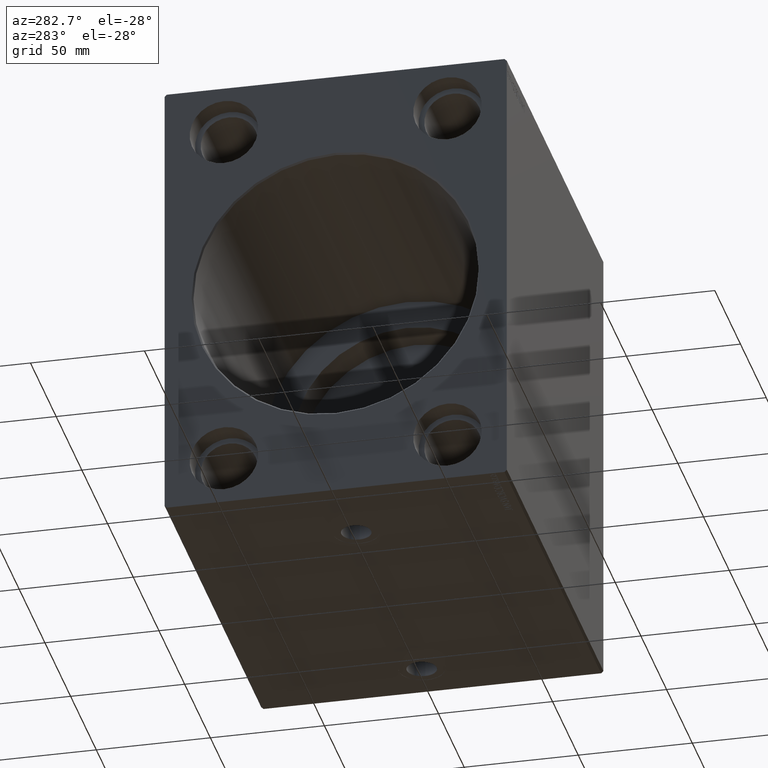
[diagram: clean part render]
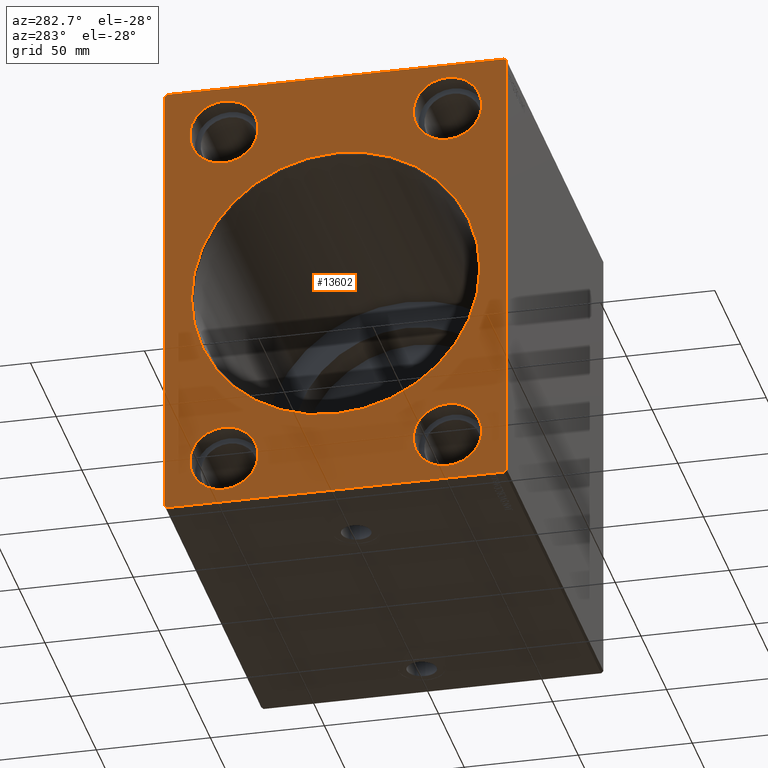
[diagram: same view with one face highlighted and labeled with its STEP entity id]
A machine part, auxiliary view. The second image highlights one B-rep face of the part: STEP entity #13602.
In plain terms, the highlighted planar face has unit normal (1, 0, 0).
Its self-contained STEP definition (entity closure, byte-faithful):
#226 = DIRECTION ( 'NONE',  ( 1.000000000000000000, -0.000000000000000000, -0.000000000000000000 ) ) ;
#692 = ORIENTED_EDGE ( 'NONE', *, *, #14228, .F. ) ;
#862 = EDGE_CURVE ( 'NONE', #36044, #10376, #34444, .T. ) ;
#997 = VECTOR ( 'NONE', #38292, 1000.000000000000114 ) ;
#1243 = VERTEX_POINT ( 'NONE', #38688 ) ;
#1377 = CARTESIAN_POINT ( 'NONE',  ( 0.000000000000000000, 49.00000000000000711, -79.00000000000001421 ) ) ;
#1546 = VERTEX_POINT ( 'NONE', #42013 ) ;
#1844 = FACE_BOUND ( 'NONE', #17213, .T. ) ;
#1917 = EDGE_CURVE ( 'NONE', #30328, #12692, #35491, .T. ) ;
#3146 = ORIENTED_EDGE ( 'NONE', *, *, #14663, .F. ) ;
#3301 = CARTESIAN_POINT ( 'NONE',  ( 0.000000000000000000, 49.00000000000000711, 79.00000000000001421 ) ) ;
#3316 = LINE ( 'NONE', #19779, #36093 ) ;
#3415 = CIRCLE ( 'NONE', #15036, 15.00000000000000000 ) ;
#4096 = DIRECTION ( 'NONE',  ( 0.000000000000000000, -0.7071067811865474617, 0.7071067811865474617 ) ) ;
#4333 = ORIENTED_EDGE ( 'NONE', *, *, #9478, .F. ) ;
#4596 = EDGE_LOOP ( 'NONE', ( #40644, #28631 ) ) ;
#4621 = FACE_OUTER_BOUND ( 'NONE', #35532, .T. ) ;
#4703 = DIRECTION ( 'NONE',  ( 0.000000000000000000, 1.000000000000000000, 0.000000000000000000 ) ) ;
#4817 = ORIENTED_EDGE ( 'NONE', *, *, #40510, .F. ) ;
#4852 = DIRECTION ( 'NONE',  ( 0.000000000000000000, 0.000000000000000000, -1.000000000000000000 ) ) ;
#4938 = CARTESIAN_POINT ( 'NONE',  ( 0.000000000000000000, 75.00000000000001421, -99.00000000000004263 ) ) ;
#4961 = ORIENTED_EDGE ( 'NONE', *, *, #35190, .F. ) ;
#5545 = ORIENTED_EDGE ( 'NONE', *, *, #1917, .F. ) ;
#5565 = AXIS2_PLACEMENT_3D ( 'NONE', #30102, #7834, #30307 ) ;
#5938 = DIRECTION ( 'NONE',  ( 0.000000000000000000, 0.7071067811865474617, -0.7071067811865474617 ) ) ;
#6638 = VERTEX_POINT ( 'NONE', #36559 ) ;
#6866 = CARTESIAN_POINT ( 'NONE',  ( 0.000000000000000000, 49.00000000000000711, 64.00000000000001421 ) ) ;
#7070 = CARTESIAN_POINT ( 'NONE',  ( 0.000000000000000000, -74.00000000000000000, 99.99999999999994316 ) ) ;
#7149 = DIRECTION ( 'NONE',  ( 0.000000000000000000, 0.000000000000000000, -1.000000000000000000 ) ) ;
#7283 = AXIS2_PLACEMENT_3D ( 'NONE', #30301, #11461, #37564 ) ;
#7297 = CARTESIAN_POINT ( 'NONE',  ( 0.000000000000000000, 75.00000000000000000, 98.99999999999995737 ) ) ;
#7514 = VECTOR ( 'NONE', #26059, 1000.000000000000000 ) ;
#7834 = DIRECTION ( 'NONE',  ( 1.000000000000000000, 0.000000000000000000, 0.000000000000000000 ) ) ;
#7861 = VECTOR ( 'NONE', #40593, 1000.000000000000000 ) ;
#8255 = PLANE ( 'NONE',  #7283 ) ;
#8652 = CARTESIAN_POINT ( 'NONE',  ( 0.000000000000000000, 49.00000000000000711, -94.00000000000001421 ) ) ;
#8901 = CARTESIAN_POINT ( 'NONE',  ( 0.000000000000000000, 0.000000000000000000, 0.000000000000000000 ) ) ;
#8966 = VERTEX_POINT ( 'NONE', #8652 ) ;
#9478 = EDGE_CURVE ( 'NONE', #39413, #30328, #20688, .T. ) ;
#9643 = DIRECTION ( 'NONE',  ( 0.000000000000000000, 0.000000000000000000, -1.000000000000000000 ) ) ;
#9655 = ORIENTED_EDGE ( 'NONE', *, *, #32042, .F. ) ;
#9807 = CARTESIAN_POINT ( 'NONE',  ( 0.000000000000000000, -75.00000000000000000, 98.99999999999994316 ) ) ;
#9911 = ORIENTED_EDGE ( 'NONE', *, *, #31232, .T. ) ;
#10376 = VERTEX_POINT ( 'NONE', #6866 ) ;
#10483 = CARTESIAN_POINT ( 'NONE',  ( 0.000000000000000000, 75.00000000000001421, -99.00000000000004263 ) ) ;
#10704 = CARTESIAN_POINT ( 'NONE',  ( 0.000000000000000000, -73.99999999999998579, -100.0000000000000426 ) ) ;
#10797 = CARTESIAN_POINT ( 'NONE',  ( 0.000000000000000000, -74.99999999999997158, -99.00000000000005684 ) ) ;
#11461 = DIRECTION ( 'NONE',  ( 1.000000000000000000, 0.000000000000000000, 0.000000000000000000 ) ) ;
#11554 = CIRCLE ( 'NONE', #32700, 15.00000000000000000 ) ;
#12113 = AXIS2_PLACEMENT_3D ( 'NONE', #29189, #35001, #18730 ) ;
#12497 = CARTESIAN_POINT ( 'NONE',  ( 0.000000000000000000, -48.99999999999999289, -64.00000000000001421 ) ) ;
#12692 = VERTEX_POINT ( 'NONE', #15400 ) ;
#12721 = CARTESIAN_POINT ( 'NONE',  ( 0.000000000000000000, 74.00000000000001421, -100.0000000000000426 ) ) ;
#13433 = CARTESIAN_POINT ( 'NONE',  ( 0.000000000000000000, 0.000000000000000000, 63.20000000000003126 ) ) ;
#13473 = EDGE_CURVE ( 'NONE', #8966, #1546, #38040, .T. ) ;
#13602 = ADVANCED_FACE ( 'NONE', ( #14671, #36935, #24079, #4621, #40775, #1844 ), #8255, .F. ) ;
#13717 = EDGE_CURVE ( 'NONE', #10376, #36044, #37366, .T. ) ;
#14113 = ORIENTED_EDGE ( 'NONE', *, *, #862, .T. ) ;
#14228 = EDGE_CURVE ( 'NONE', #22762, #6638, #25194, .T. ) ;
#14290 = AXIS2_PLACEMENT_3D ( 'NONE', #41811, #41185, #35183 ) ;
#14426 = DIRECTION ( 'NONE',  ( -1.000000000000000000, 0.000000000000000000, 0.000000000000000000 ) ) ;
#14509 = EDGE_CURVE ( 'NONE', #1243, #31335, #29857, .T. ) ;
#14663 = EDGE_CURVE ( 'NONE', #1546, #8966, #29161, .T. ) ;
#14671 = FACE_BOUND ( 'NONE', #39799, .T. ) ;
#15036 = AXIS2_PLACEMENT_3D ( 'NONE', #15047, #37088, #28081 ) ;
#15047 = CARTESIAN_POINT ( 'NONE',  ( 0.000000000000000000, -48.99999999999999289, 79.00000000000001421 ) ) ;
#15400 = CARTESIAN_POINT ( 'NONE',  ( 0.000000000000000000, -75.00000000000000000, 98.99999999999994316 ) ) ;
#15985 = ORIENTED_EDGE ( 'NONE', *, *, #13717, .T. ) ;
#16349 = DIRECTION ( 'NONE',  ( 1.000000000000000000, -0.000000000000000000, -0.000000000000000000 ) ) ;
#16398 = DIRECTION ( 'NONE',  ( 0.000000000000000000, 0.000000000000000000, 1.000000000000000000 ) ) ;
#16588 = ORIENTED_EDGE ( 'NONE', *, *, #13473, .F. ) ;
#16655 = LINE ( 'NONE', #9807, #7514 ) ;
#16763 = VERTEX_POINT ( 'NONE', #16858 ) ;
#16858 = CARTESIAN_POINT ( 'NONE',  ( 0.000000000000000000, 75.00000000000000000, 98.99999999999995737 ) ) ;
#16861 = AXIS2_PLACEMENT_3D ( 'NONE', #1377, #14426, #21252 ) ;
#16921 = LINE ( 'NONE', #7297, #18512 ) ;
#16934 = ORIENTED_EDGE ( 'NONE', *, *, #41282, .F. ) ;
#17213 = EDGE_LOOP ( 'NONE', ( #14113, #15985 ) ) ;
#17377 = ORIENTED_EDGE ( 'NONE', *, *, #32325, .F. ) ;
#18499 = VERTEX_POINT ( 'NONE', #4938 ) ;
#18512 = VECTOR ( 'NONE', #4096, 1000.000000000000114 ) ;
#18730 = DIRECTION ( 'NONE',  ( 0.000000000000000000, 0.000000000000000000, 1.000000000000000000 ) ) ;
#19779 = CARTESIAN_POINT ( 'NONE',  ( 0.000000000000000000, 74.00000000000001421, -100.0000000000000426 ) ) ;
#20028 = DIRECTION ( 'NONE',  ( -1.000000000000000000, 0.000000000000000000, 0.000000000000000000 ) ) ;
#20548 = EDGE_CURVE ( 'NONE', #31263, #28397, #11554, .T. ) ;
#20688 = LINE ( 'NONE', #27946, #7861 ) ;
#21252 = DIRECTION ( 'NONE',  ( 0.000000000000000000, 0.000000000000000000, 1.000000000000000000 ) ) ;
#21737 = CARTESIAN_POINT ( 'NONE',  ( 0.000000000000000000, 74.00000000000000000, 99.99999999999995737 ) ) ;
#22762 = VERTEX_POINT ( 'NONE', #10797 ) ;
#22791 = CARTESIAN_POINT ( 'NONE',  ( 0.000000000000000000, 49.00000000000000711, -79.00000000000001421 ) ) ;
#24079 = FACE_BOUND ( 'NONE', #4596, .T. ) ;
#24680 = EDGE_LOOP ( 'NONE', ( #3146, #16588 ) ) ;
#24933 = CARTESIAN_POINT ( 'NONE',  ( 0.000000000000000000, -48.99999999999999289, -94.00000000000001421 ) ) ;
#25194 = LINE ( 'NONE', #35253, #26433 ) ;
#25676 = CARTESIAN_POINT ( 'NONE',  ( 0.000000000000000000, 49.00000000000000711, 79.00000000000001421 ) ) ;
#25919 = VERTEX_POINT ( 'NONE', #12721 ) ;
#25944 = CARTESIAN_POINT ( 'NONE',  ( 0.000000000000000000, -48.99999999999999289, 64.00000000000001421 ) ) ;
#26059 = DIRECTION ( 'NONE',  ( 0.000000000000000000, 1.401796748264086446E-16, -1.000000000000000000 ) ) ;
#26433 = VECTOR ( 'NONE', #5938, 1000.000000000000114 ) ;
#26699 = CIRCLE ( 'NONE', #5565, 63.20000000000003126 ) ;
#26794 = VECTOR ( 'NONE', #4703, 1000.000000000000000 ) ;
#27946 = CARTESIAN_POINT ( 'NONE',  ( 0.000000000000000000, 74.00000000000000000, 99.99999999999995737 ) ) ;
#28081 = DIRECTION ( 'NONE',  ( 0.000000000000000000, 0.000000000000000000, 1.000000000000000000 ) ) ;
#28397 = VERTEX_POINT ( 'NONE', #24933 ) ;
#28413 = EDGE_CURVE ( 'NONE', #40628, #30737, #30635, .T. ) ;
#28523 = EDGE_CURVE ( 'NONE', #25919, #18499, #3316, .T. ) ;
#28631 = ORIENTED_EDGE ( 'NONE', *, *, #28413, .T. ) ;
#28735 = ORIENTED_EDGE ( 'NONE', *, *, #28523, .F. ) ;
#29129 = AXIS2_PLACEMENT_3D ( 'NONE', #3301, #16349, #7149 ) ;
#29161 = CIRCLE ( 'NONE', #16861, 15.00000000000000000 ) ;
#29189 = CARTESIAN_POINT ( 'NONE',  ( 0.000000000000000000, -48.99999999999999289, 79.00000000000001421 ) ) ;
#29536 = CARTESIAN_POINT ( 'NONE',  ( 0.000000000000000000, -48.99999999999999289, -79.00000000000001421 ) ) ;
#29857 = CIRCLE ( 'NONE', #12113, 15.00000000000000000 ) ;
#30102 = CARTESIAN_POINT ( 'NONE',  ( 0.000000000000000000, 0.000000000000000000, 0.000000000000000000 ) ) ;
#30301 = CARTESIAN_POINT ( 'NONE',  ( 0.000000000000000000, 0.000000000000000000, 0.000000000000000000 ) ) ;
#30307 = DIRECTION ( 'NONE',  ( 0.000000000000000000, 0.000000000000000000, -1.000000000000000000 ) ) ;
#30328 = VERTEX_POINT ( 'NONE', #7070 ) ;
#30635 = CIRCLE ( 'NONE', #32011, 63.20000000000003126 ) ;
#30737 = VERTEX_POINT ( 'NONE', #13433 ) ;
#30977 = ORIENTED_EDGE ( 'NONE', *, *, #20548, .T. ) ;
#31104 = EDGE_LOOP ( 'NONE', ( #30977, #9911 ) ) ;
#31232 = EDGE_CURVE ( 'NONE', #28397, #31263, #42324, .T. ) ;
#31263 = VERTEX_POINT ( 'NONE', #12497 ) ;
#31335 = VERTEX_POINT ( 'NONE', #25944 ) ;
#32011 = AXIS2_PLACEMENT_3D ( 'NONE', #8901, #41419, #4852 ) ;
#32042 = EDGE_CURVE ( 'NONE', #12692, #22762, #16655, .T. ) ;
#32325 = EDGE_CURVE ( 'NONE', #31335, #1243, #3415, .T. ) ;
#32700 = AXIS2_PLACEMENT_3D ( 'NONE', #29536, #226, #32950 ) ;
#32831 = DIRECTION ( 'NONE',  ( 0.000000000000000000, 0.7071067811865474617, 0.7071067811865474617 ) ) ;
#32950 = DIRECTION ( 'NONE',  ( 0.000000000000000000, 0.000000000000000000, -1.000000000000000000 ) ) ;
#33027 = CARTESIAN_POINT ( 'NONE',  ( 0.000000000000000000, 49.00000000000000711, 94.00000000000001421 ) ) ;
#33156 = LINE ( 'NONE', #10483, #38444 ) ;
#33366 = DIRECTION ( 'NONE',  ( 0.000000000000000000, -7.008983741320432232E-17, 1.000000000000000000 ) ) ;
#33588 = LINE ( 'NONE', #10704, #26794 ) ;
#34117 = CARTESIAN_POINT ( 'NONE',  ( 0.000000000000000000, 7.739767770611276825E-15, -63.20000000000003126 ) ) ;
#34444 = CIRCLE ( 'NONE', #40584, 15.00000000000000000 ) ;
#35001 = DIRECTION ( 'NONE',  ( -1.000000000000000000, 0.000000000000000000, 0.000000000000000000 ) ) ;
#35183 = DIRECTION ( 'NONE',  ( 0.000000000000000000, 0.000000000000000000, -1.000000000000000000 ) ) ;
#35190 = EDGE_CURVE ( 'NONE', #16763, #39413, #16921, .T. ) ;
#35253 = CARTESIAN_POINT ( 'NONE',  ( 0.000000000000000000, -74.99999999999997158, -99.00000000000005684 ) ) ;
#35491 = LINE ( 'NONE', #38078, #997 ) ;
#35532 = EDGE_LOOP ( 'NONE', ( #4961, #4817, #28735, #16934, #692, #9655, #5545, #4333 ) ) ;
#36044 = VERTEX_POINT ( 'NONE', #33027 ) ;
#36093 = VECTOR ( 'NONE', #32831, 1000.000000000000114 ) ;
#36559 = CARTESIAN_POINT ( 'NONE',  ( 0.000000000000000000, -73.99999999999998579, -100.0000000000000426 ) ) ;
#36595 = EDGE_CURVE ( 'NONE', #30737, #40628, #26699, .T. ) ;
#36935 = FACE_BOUND ( 'NONE', #24680, .T. ) ;
#37088 = DIRECTION ( 'NONE',  ( -1.000000000000000000, 0.000000000000000000, 0.000000000000000000 ) ) ;
#37366 = CIRCLE ( 'NONE', #29129, 15.00000000000000000 ) ;
#37564 = DIRECTION ( 'NONE',  ( 0.000000000000000000, 0.000000000000000000, -1.000000000000000000 ) ) ;
#38040 = CIRCLE ( 'NONE', #42118, 15.00000000000000000 ) ;
#38078 = CARTESIAN_POINT ( 'NONE',  ( 0.000000000000000000, -74.00000000000000000, 99.99999999999994316 ) ) ;
#38125 = DIRECTION ( 'NONE',  ( 1.000000000000000000, -0.000000000000000000, -0.000000000000000000 ) ) ;
#38292 = DIRECTION ( 'NONE',  ( 0.000000000000000000, -0.7071067811865474617, -0.7071067811865474617 ) ) ;
#38444 = VECTOR ( 'NONE', #33366, 1000.000000000000000 ) ;
#38688 = CARTESIAN_POINT ( 'NONE',  ( 0.000000000000000000, -48.99999999999999289, 94.00000000000001421 ) ) ;
#39209 = ORIENTED_EDGE ( 'NONE', *, *, #14509, .F. ) ;
#39413 = VERTEX_POINT ( 'NONE', #21737 ) ;
#39799 = EDGE_LOOP ( 'NONE', ( #39209, #17377 ) ) ;
#40510 = EDGE_CURVE ( 'NONE', #18499, #16763, #33156, .T. ) ;
#40584 = AXIS2_PLACEMENT_3D ( 'NONE', #25676, #38125, #9643 ) ;
#40593 = DIRECTION ( 'NONE',  ( 0.000000000000000000, -1.000000000000000000, -9.376883653928687363E-17 ) ) ;
#40628 = VERTEX_POINT ( 'NONE', #34117 ) ;
#40644 = ORIENTED_EDGE ( 'NONE', *, *, #36595, .T. ) ;
#40775 = FACE_BOUND ( 'NONE', #31104, .T. ) ;
#41185 = DIRECTION ( 'NONE',  ( 1.000000000000000000, -0.000000000000000000, -0.000000000000000000 ) ) ;
#41282 = EDGE_CURVE ( 'NONE', #6638, #25919, #33588, .T. ) ;
#41419 = DIRECTION ( 'NONE',  ( 1.000000000000000000, 0.000000000000000000, 0.000000000000000000 ) ) ;
#41811 = CARTESIAN_POINT ( 'NONE',  ( 0.000000000000000000, -48.99999999999999289, -79.00000000000001421 ) ) ;
#42013 = CARTESIAN_POINT ( 'NONE',  ( 0.000000000000000000, 49.00000000000000711, -64.00000000000001421 ) ) ;
#42118 = AXIS2_PLACEMENT_3D ( 'NONE', #22791, #20028, #16398 ) ;
#42324 = CIRCLE ( 'NONE', #14290, 15.00000000000000000 ) ;